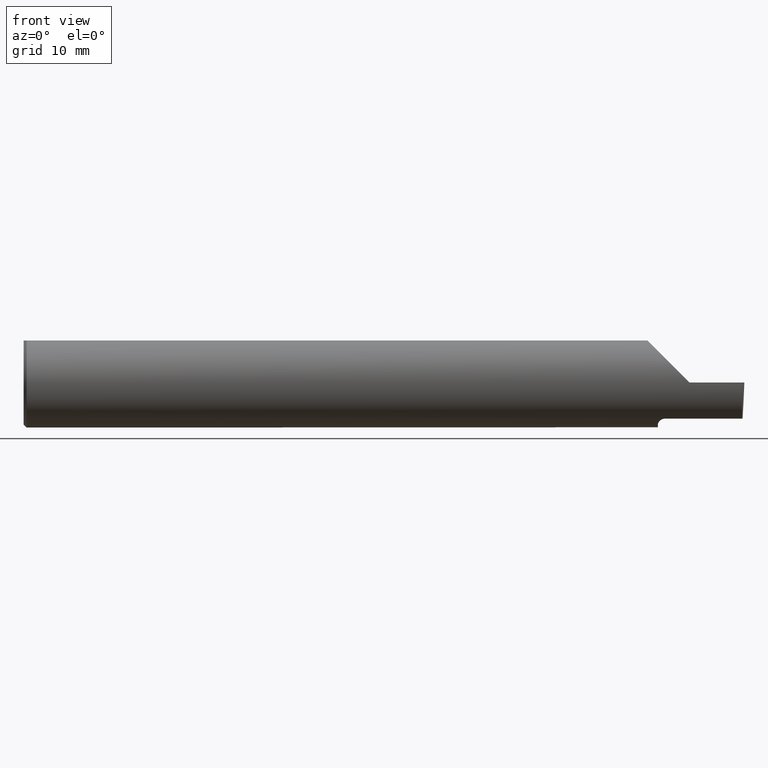
[diagram: clean part render]
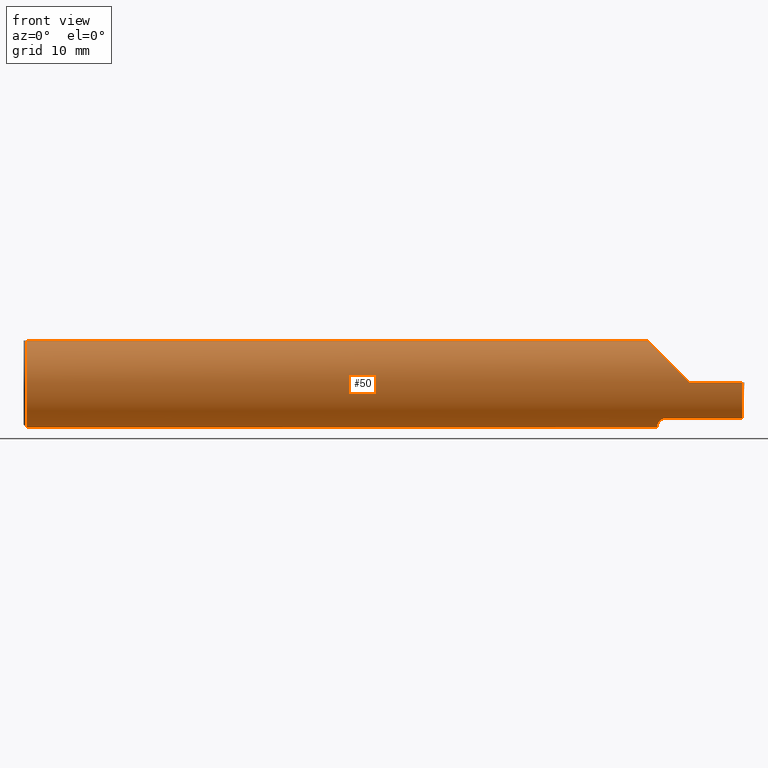
[diagram: same view with one face highlighted and labeled with its STEP entity id]
A machine part, front view. The second image highlights one B-rep face of the part: STEP entity #50.
In plain terms, the highlighted cylindrical surface (partial cylindrical patch) has radius 3.9649 mm, axis along (-1, -0, -0).
Its self-contained STEP definition (entity closure, byte-faithful):
#1 = AXIS2_PLACEMENT_3D ( 'NONE', #453, #308, #23 ) ;
#3 = CARTESIAN_POINT ( 'NONE',  ( 2.202026367118635086, -0.07167964287766653841, -0.1387431844349195920 ) ) ;
#14 = CARTESIAN_POINT ( 'NONE',  ( 2.200000000000000178, -0.05502817059483715301, -0.1460791239054557433 ) ) ;
#18 = CARTESIAN_POINT ( 'NONE',  ( 2.494884149684813757, -0.1560999999999999888, 0.000000000000000000 ) ) ;
#23 = DIRECTION ( 'NONE',  ( 0.000000000000000000, 0.000000000000000000, -1.000000000000000000 ) ) ;
#29 = CARTESIAN_POINT ( 'NONE',  ( 0.01000000000000013205, 0.000000000000000000, -0.1560999999999999888 ) ) ;
#30 = B_SPLINE_CURVE_WITH_KNOTS ( 'NONE', 3,
 ( #174, #62, #288, #169, #165, #216, #3, #486, #230, #14 ),
 .UNSPECIFIED., .F., .F.,
 ( 4, 2, 2, 2, 4 ),
 ( 1.958690481381664333E-07, 0.0003511029445248166499, 0.0007020100200014951254, 0.001052917095478173547, 0.001403824170954851968 ),
 .UNSPECIFIED. ) ;
#35 = ORIENTED_EDGE ( 'NONE', *, *, #504, .F. ) ;
#37 = EDGE_LOOP ( 'NONE', ( #307, #482, #397, #380, #484, #377, #465, #348, #434, #623, #35 ) ) ;
#45 = CARTESIAN_POINT ( 'NONE',  ( 2.171821004789464826, 0.07602423094865468078, 0.1381789952105338670 ) ) ;
#48 = CARTESIAN_POINT ( 'NONE',  ( 2.163899999999998602, -0.05497272050753934658, 0.1460999999999998411 ) ) ;
#50 = ADVANCED_FACE ( 'NONE', ( #423 ), #644, .T. ) ;
#62 = CARTESIAN_POINT ( 'NONE',  ( 2.220298065053172731, -0.09360841750841733533, -0.1249186702281521177 ) ) ;
#79 = CARTESIAN_POINT ( 'NONE',  ( 2.345733190000000246, -0.09360841750841737696, -0.1249186702281520900 ) ) ;
#86 = VERTEX_POINT ( 'NONE', #29 ) ;
#96 = AXIS2_PLACEMENT_3D ( 'NONE', #689, #440, #109 ) ;
#98 = CARTESIAN_POINT ( 'NONE',  ( 0.01000000000000013205, -0.05497272050753933964, 0.1460999999999998689 ) ) ;
#109 = DIRECTION ( 'NONE',  ( 0.000000000000000000, 0.000000000000000000, -1.000000000000000000 ) ) ;
#119 = CARTESIAN_POINT ( 'NONE',  ( 2.163899999999998602, -0.05497272050753934658, 0.1460999999999998411 ) ) ;
#141 =( BOUNDED_CURVE ( )  B_SPLINE_CURVE ( 3, ( #376, #600, #605, #119 ),
 .UNSPECIFIED., .F., .F. ) 
 B_SPLINE_CURVE_WITH_KNOTS ( ( 4, 4 ),
 ( 4.712388980384689674, 5.923303634979667720 ),
 .UNSPECIFIED. ) 
 CURVE ( )  GEOMETRIC_REPRESENTATION_ITEM ( )  RATIONAL_B_SPLINE_CURVE ( ( 1.000000000000000000, 0.8814946008038391234, 0.8814946008038391234, 1.000000000000000000 ) ) 
 REPRESENTATION_ITEM ( '' )  );
#151 = EDGE_CURVE ( 'NONE', #181, #574, #572, .T. ) ;
#157 = CARTESIAN_POINT ( 'NONE',  ( 3.749399456654646757E-32, -0.1560999999999999333, 3.061616997868383634E-16 ) ) ;
#159 = CARTESIAN_POINT ( 'NONE',  ( 2.494884149684813757, -0.1560999999999999888, 0.000000000000000000 ) ) ;
#165 = CARTESIAN_POINT ( 'NONE',  ( 2.206963077135974949, -0.08291057444783000996, -0.1323284214741864140 ) ) ;
#169 = CARTESIAN_POINT ( 'NONE',  ( 2.209390565699349995, -0.08631243322371089099, -0.1301077001157306956 ) ) ;
#174 = CARTESIAN_POINT ( 'NONE',  ( 2.225000000000000089, -0.09360841750841730757, -0.1249186702281521594 ) ) ;
#181 = VERTEX_POINT ( 'NONE', #628 ) ;
#186 = VECTOR ( 'NONE', #472, 39.37007874015748143 ) ;
#192 = CARTESIAN_POINT ( 'NONE',  ( 2.163899999999998602, 0.05497272050753934658, 0.1460999999999998411 ) ) ;
#193 = EDGE_CURVE ( 'NONE', #86, #234, #422, .T. ) ;
#197 = DIRECTION ( 'NONE',  ( -1.000000000000000000, -0.000000000000000000, -0.000000000000000000 ) ) ;
#209 = LINE ( 'NONE', #157, #638 ) ;
#216 = CARTESIAN_POINT ( 'NONE',  ( 2.203298581922916277, -0.07564908586346459629, -0.1366096273808739825 ) ) ;
#218 =( BOUNDED_CURVE ( )  B_SPLINE_CURVE ( 3, ( #401, #624, #451, #18 ),
 .UNSPECIFIED., .F., .F. ) 
 B_SPLINE_CURVE_WITH_KNOTS ( ( 4, 4 ),
 ( 0.1796232990704061949, 1.107331509589571494 ),
 .UNSPECIFIED. ) 
 CURVE ( )  GEOMETRIC_REPRESENTATION_ITEM ( )  RATIONAL_B_SPLINE_CURVE ( ( 1.000000000000000000, 0.9295565493311497285, 0.9295565493311497285, 1.000000000000000000 ) ) 
 REPRESENTATION_ITEM ( '' )  );
#221 = EDGE_CURVE ( 'NONE', #333, #383, #218, .T. ) ;
#230 = CARTESIAN_POINT ( 'NONE',  ( 2.199999999999997957, -0.05933838711026684365, -0.1444554604868197589 ) ) ;
#231 = EDGE_CURVE ( 'NONE', #286, #262, #313, .T. ) ;
#234 = VERTEX_POINT ( 'NONE', #567 ) ;
#236 = DIRECTION ( 'NONE',  ( 0.000000000000000000, 0.000000000000000000, 1.000000000000000000 ) ) ;
#248 = CARTESIAN_POINT ( 'NONE',  ( 2.200000000000000178, 0.000000000000000000, 0.000000000000000000 ) ) ;
#262 = VERTEX_POINT ( 'NONE', #48 ) ;
#266 = VERTEX_POINT ( 'NONE', #365 ) ;
#286 = VERTEX_POINT ( 'NONE', #98 ) ;
#288 = CARTESIAN_POINT ( 'NONE',  ( 2.215963332554101495, -0.09167217634395836978, -0.1263885352504912352 ) ) ;
#292 = CARTESIAN_POINT ( 'NONE',  ( 0.000000000000000000, 0.000000000000000000, 0.000000000000000000 ) ) ;
#300 = VERTEX_POINT ( 'NONE', #318 ) ;
#305 = DIRECTION ( 'NONE',  ( 1.000000000000000000, 1.922274392784743754E-16, 0.000000000000000000 ) ) ;
#307 = ORIENTED_EDGE ( 'NONE', *, *, #598, .F. ) ;
#308 = DIRECTION ( 'NONE',  ( 1.000000000000000000, 0.000000000000000000, 0.000000000000000000 ) ) ;
#310 = LINE ( 'NONE', #579, #186 ) ;
#313 = LINE ( 'NONE', #668, #532 ) ;
#318 = CARTESIAN_POINT ( 'NONE',  ( 2.310000000000000053, -0.1560999999999999888, 2.326828918379970872E-17 ) ) ;
#333 = VERTEX_POINT ( 'NONE', #576 ) ;
#341 = DIRECTION ( 'NONE',  ( 1.000000000000000000, 0.000000000000000000, 0.000000000000000000 ) ) ;
#348 = ORIENTED_EDGE ( 'NONE', *, *, #671, .F. ) ;
#365 = CARTESIAN_POINT ( 'NONE',  ( 2.225000000000000089, -0.09360841750841730757, -0.1249186702281521594 ) ) ;
#367 = CARTESIAN_POINT ( 'NONE',  ( 2.184040990036858698, 0.09490756670483446733, 0.1259590099631404669 ) ) ;
#372 = EDGE_CURVE ( 'NONE', #383, #300, #209, .T. ) ;
#373 = DIRECTION ( 'NONE',  ( -1.000000000000000000, -0.000000000000000000, -0.000000000000000000 ) ) ;
#376 = CARTESIAN_POINT ( 'NONE',  ( 2.310000000000000053, -0.1560999999999999888, 2.326828918379970872E-17 ) ) ;
#377 = ORIENTED_EDGE ( 'NONE', *, *, #413, .T. ) ;
#380 = ORIENTED_EDGE ( 'NONE', *, *, #514, .T. ) ;
#383 = VERTEX_POINT ( 'NONE', #159 ) ;
#396 = DIRECTION ( 'NONE',  ( -1.000000000000000000, -1.922274392784743754E-16, -0.000000000000000000 ) ) ;
#397 = ORIENTED_EDGE ( 'NONE', *, *, #372, .T. ) ;
#401 = CARTESIAN_POINT ( 'NONE',  ( 2.491612023732480807, -0.09360841750841733533, -0.1249186702281520900 ) ) ;
#413 = EDGE_CURVE ( 'NONE', #286, #86, #536, .T. ) ;
#422 = CIRCLE ( 'NONE', #1, 0.1560999999999999888 ) ;
#423 = FACE_OUTER_BOUND ( 'NONE', #37, .T. ) ;
#427 = VECTOR ( 'NONE', #396, 39.37007874015748143 ) ;
#434 = ORIENTED_EDGE ( 'NONE', *, *, #685, .T. ) ;
#440 = DIRECTION ( 'NONE',  ( 1.000000000000000000, 0.000000000000000000, 0.000000000000000000 ) ) ;
#451 = CARTESIAN_POINT ( 'NONE',  ( 2.493134786043259332, -0.1561000000000000165, -0.05008759057876779885 ) ) ;
#453 = CARTESIAN_POINT ( 'NONE',  ( 0.01000000000000013205, 0.000000000000000000, 0.000000000000000000 ) ) ;
#463 = CARTESIAN_POINT ( 'NONE',  ( 2.200000000000000178, 0.1107574376735043775, 0.1099999999999990152 ) ) ;
#465 = ORIENTED_EDGE ( 'NONE', *, *, #193, .T. ) ;
#472 = DIRECTION ( 'NONE',  ( -1.000000000000000000, -0.000000000000000000, -0.000000000000000000 ) ) ;
#482 = ORIENTED_EDGE ( 'NONE', *, *, #221, .T. ) ;
#484 = ORIENTED_EDGE ( 'NONE', *, *, #231, .F. ) ;
#486 = CARTESIAN_POINT ( 'NONE',  ( 2.200382848617945974, -0.06353102748571681779, -0.1426585117573466732 ) ) ;
#491 = CARTESIAN_POINT ( 'NONE',  ( 2.200000000000000178, 0.1107574376735043775, 0.1099999999999990152 ) ) ;
#503 = DIRECTION ( 'NONE',  ( 0.000000000000000000, 1.000000000000000000, 0.000000000000000000 ) ) ;
#504 = EDGE_CURVE ( 'NONE', #266, #181, #30, .T. ) ;
#514 = EDGE_CURVE ( 'NONE', #300, #262, #141, .T. ) ;
#532 = VECTOR ( 'NONE', #341, 39.37007874015748143 ) ;
#536 = CIRCLE ( 'NONE', #96, 0.1560999999999999888 ) ;
#544 =( BOUNDED_CURVE ( )  B_SPLINE_CURVE ( 3, ( #583, #45, #367, #463 ),
 .UNSPECIFIED., .F., .T. ) 
 B_SPLINE_CURVE_WITH_KNOTS ( ( 4, 4 ),
 ( 0.3598816721999182899, 0.7888292355698529601 ),
 .UNSPECIFIED. ) 
 CURVE ( )  GEOMETRIC_REPRESENTATION_ITEM ( )  RATIONAL_B_SPLINE_CURVE ( ( 1.000000000000000000, 0.9847256841738316613, 0.9847256841738316613, 1.000000000000000000 ) ) 
 REPRESENTATION_ITEM ( '' )  );
#567 = CARTESIAN_POINT ( 'NONE',  ( 0.01000000000000013205, 0.05497272050753933964, 0.1460999999999998689 ) ) ;
#572 = CIRCLE ( 'NONE', #632, 0.1560999999999999888 ) ;
#574 = VERTEX_POINT ( 'NONE', #491 ) ;
#576 = CARTESIAN_POINT ( 'NONE',  ( 2.491612023732480807, -0.09360841750841733533, -0.1249186702281520900 ) ) ;
#579 = CARTESIAN_POINT ( 'NONE',  ( 0.000000000000000000, 0.05497272050753933964, 0.1460999999999998689 ) ) ;
#583 = CARTESIAN_POINT ( 'NONE',  ( 2.163899999999998602, 0.05497272050753934658, 0.1460999999999998411 ) ) ;
#598 = EDGE_CURVE ( 'NONE', #333, #266, #666, .T. ) ;
#600 = CARTESIAN_POINT ( 'NONE',  ( 2.242809217309686520, -0.1560999999999999333, 0.06719078269031249218 ) ) ;
#605 = CARTESIAN_POINT ( 'NONE',  ( 2.187562140406900557, -0.1178591609371014842, 0.1224378595930980251 ) ) ;
#623 = ORIENTED_EDGE ( 'NONE', *, *, #151, .F. ) ;
#624 = CARTESIAN_POINT ( 'NONE',  ( 2.491961421548583910, -0.1336908980339253650, -0.09488266708345018119 ) ) ;
#627 = VERTEX_POINT ( 'NONE', #192 ) ;
#628 = CARTESIAN_POINT ( 'NONE',  ( 2.200000000000000178, -0.05502817059483715301, -0.1460791239054557433 ) ) ;
#632 = AXIS2_PLACEMENT_3D ( 'NONE', #248, #305, #503 ) ;
#638 = VECTOR ( 'NONE', #373, 39.37007874015748143 ) ;
#644 = CYLINDRICAL_SURFACE ( 'NONE', #648, 0.1560999999999999888 ) ;
#648 = AXIS2_PLACEMENT_3D ( 'NONE', #292, #197, #236 ) ;
#666 = LINE ( 'NONE', #79, #427 ) ;
#668 = CARTESIAN_POINT ( 'NONE',  ( 0.000000000000000000, -0.05497272050753933964, 0.1460999999999998689 ) ) ;
#671 = EDGE_CURVE ( 'NONE', #627, #234, #310, .T. ) ;
#685 = EDGE_CURVE ( 'NONE', #627, #574, #544, .T. ) ;
#689 = CARTESIAN_POINT ( 'NONE',  ( 0.01000000000000013205, 0.000000000000000000, 0.000000000000000000 ) ) ;